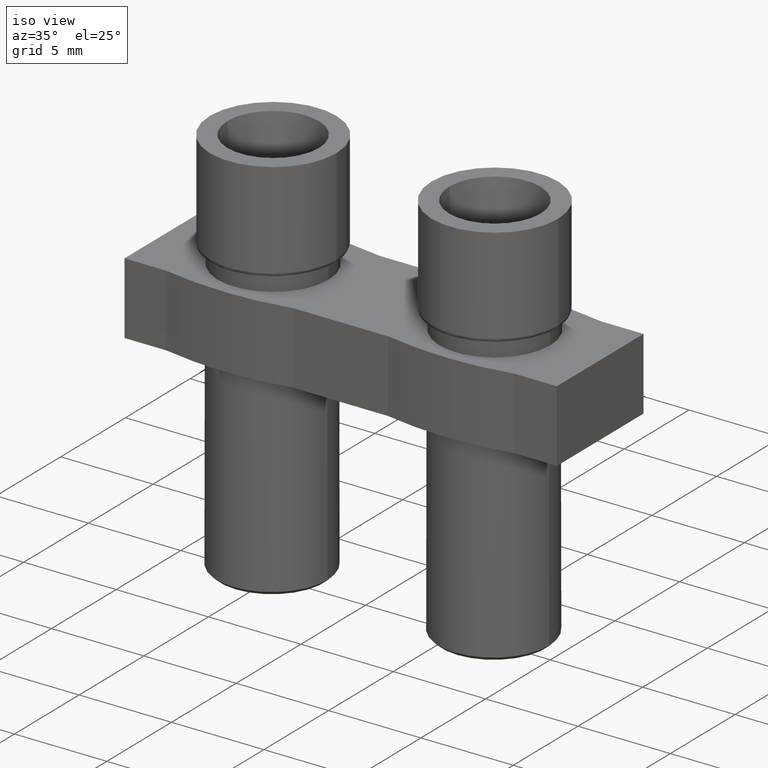
[diagram: clean part render]
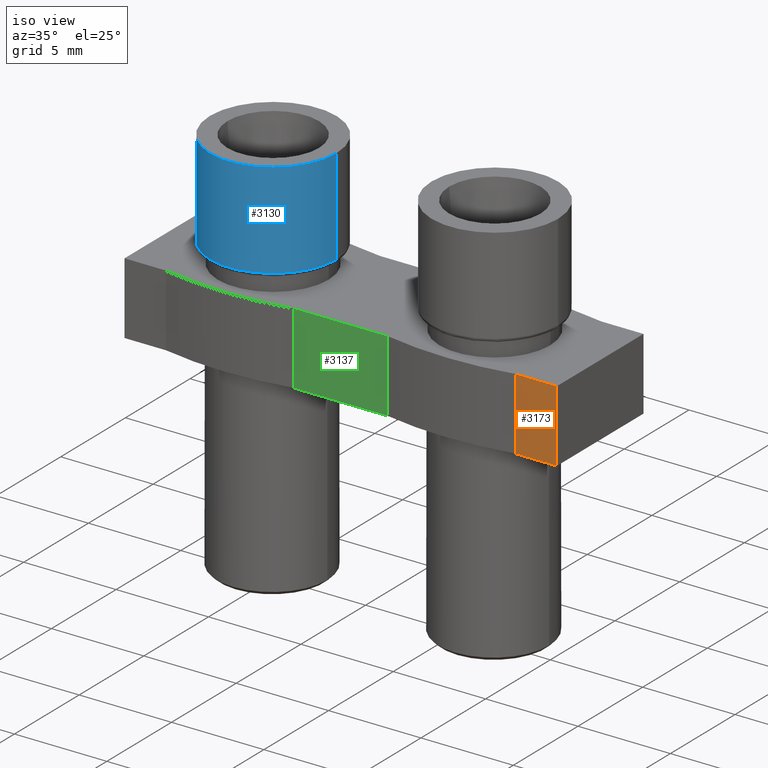
[diagram: same view with three faces highlighted in distinct colors, each labeled with its STEP entity id]
A machine part, iso view with three faces highlighted in distinct colors.
Their STEP definitions:

[orange] entity #3173 — the highlighted planar face has unit normal (-0, 1, 0).
#476 = DIRECTION ( 'NONE',  ( 0.0000000000000000000, 0.0000000000000000000, 1.000000000000000000 ) ) ;
#493 = LINE ( 'NONE', #508, #2606 ) ;
#508 = CARTESIAN_POINT ( 'NONE',  ( 15.44710023062971300, -3.349999999999915300, -9.302499305941093900 ) ) ;
#556 = CARTESIAN_POINT ( 'NONE',  ( 17.69999999999921800, -3.349999999999914400, -15.81000000015502300 ) ) ;
#581 = LINE ( 'NONE', #556, #2609 ) ;
#590 = DIRECTION ( 'NONE',  ( 0.0000000000000000000, 0.0000000000000000000, -1.000000000000000000 ) ) ;
#604 = LINE ( 'NONE', #632, #2608 ) ;
#625 = DIRECTION ( 'NONE',  ( 1.000000000000000000, 1.245679091791856200E-016, -0.0000000000000000000 ) ) ;
#632 = CARTESIAN_POINT ( 'NONE',  ( 28.15000000000000900, -3.349999999999912600, -0.9000000000000014700 ) ) ;
#1237 = FACE_OUTER_BOUND ( 'NONE', #1807, .T. ) ;
#1262 = CARTESIAN_POINT ( 'NONE',  ( 28.15000000000000900, -3.349999999999912600, -0.9000000000000014700 ) ) ;
#1263 = PLANE ( 'NONE',  #2758 ) ;
#1276 = DIRECTION ( 'NONE',  ( -1.000000000000000000, -1.245679091791856200E-016, 0.0000000000000000000 ) ) ;
#1302 = DIRECTION ( 'NONE',  ( -1.245679091791856200E-016, 1.000000000000000000, 0.0000000000000000000 ) ) ;
#1520 = LINE ( 'NONE', #1523, #2588 ) ;
#1523 = CARTESIAN_POINT ( 'NONE',  ( -77.85000000000005100, -3.349999999999912600, -4.800000000000001600 ) ) ;
#1530 = DIRECTION ( 'NONE',  ( -1.000000000000000000, 0.0000000000000000000, -0.0000000000000000000 ) ) ;
#1653 = VERTEX_POINT ( 'NONE', #2417 ) ;
#1692 = VERTEX_POINT ( 'NONE', #2443 ) ;
#1706 = VERTEX_POINT ( 'NONE', #2445 ) ;
#1721 = VERTEX_POINT ( 'NONE', #2463 ) ;
#1807 = EDGE_LOOP ( 'NONE', ( #2190, #2215, #2276, #2207 ) ) ;
#2190 = ORIENTED_EDGE ( 'NONE', *, *, #3045, .F. ) ;
#2207 = ORIENTED_EDGE ( 'NONE', *, *, #2997, .F. ) ;
#2215 = ORIENTED_EDGE ( 'NONE', *, *, #3053, .F. ) ;
#2276 = ORIENTED_EDGE ( 'NONE', *, *, #3010, .F. ) ;
#2417 = CARTESIAN_POINT ( 'NONE',  ( 15.44710023062973500, -3.349999999999912600, -4.800000000000001600 ) ) ;
#2443 = CARTESIAN_POINT ( 'NONE',  ( 15.44710023062971500, -3.349999999999914400, -0.9000000000000014700 ) ) ;
#2445 = CARTESIAN_POINT ( 'NONE',  ( 17.69999999999921800, -3.349999999999912600, -4.800000000000001600 ) ) ;
#2463 = CARTESIAN_POINT ( 'NONE',  ( 17.69999999999921800, -3.349999999999913900, -0.9000000000000014700 ) ) ;
#2588 = VECTOR ( 'NONE', #1530, 1000.000000000000000 ) ;
#2606 = VECTOR ( 'NONE', #476, 1000.000000000000000 ) ;
#2608 = VECTOR ( 'NONE', #625, 1000.000000000000000 ) ;
#2609 = VECTOR ( 'NONE', #590, 1000.000000000000000 ) ;
#2758 = AXIS2_PLACEMENT_3D ( 'NONE', #1262, #1302, #1276 ) ;
#2997 = EDGE_CURVE ( 'NONE', #1706, #1653, #1520, .T. ) ;
#3010 = EDGE_CURVE ( 'NONE', #1653, #1692, #493, .T. ) ;
#3045 = EDGE_CURVE ( 'NONE', #1721, #1706, #581, .T. ) ;
#3053 = EDGE_CURVE ( 'NONE', #1692, #1721, #604, .T. ) ;
#3173 = ADVANCED_FACE ( 'NONE', ( #1237 ), #1263, .F. ) ;

[blue] entity #3130 — the highlighted cylindrical surface (partial cylindrical patch) has radius 3.425 mm, axis along (-0, -0, -1).
#77 = CARTESIAN_POINT ( 'NONE',  ( -3.424999999999998000, 0.0000000000000000000, 5.400000000000000400 ) ) ;
#88 = DIRECTION ( 'NONE',  ( -0.0000000000000000000, -0.0000000000000000000, -1.000000000000000000 ) ) ;
#105 = LINE ( 'NONE', #77, #2873 ) ;
#177 = DIRECTION ( 'NONE',  ( -0.0000000000000000000, -0.0000000000000000000, -1.000000000000000000 ) ) ;
#180 = LINE ( 'NONE', #181, #2874 ) ;
#181 = CARTESIAN_POINT ( 'NONE',  ( 3.424999999999998000, 4.194415287079682000E-016, 5.400000000000000400 ) ) ;
#278 = CARTESIAN_POINT ( 'NONE',  ( 0.0000000000000000000, 0.0000000000000000000, 5.400000000000000400 ) ) ;
#279 = DIRECTION ( 'NONE',  ( -1.000000000000000000, 0.0000000000000000000, 0.0000000000000000000 ) ) ;
#285 = DIRECTION ( 'NONE',  ( -0.0000000000000000000, -0.0000000000000000000, -1.000000000000000000 ) ) ;
#935 = FACE_OUTER_BOUND ( 'NONE', #1785, .T. ) ;
#986 = CARTESIAN_POINT ( 'NONE',  ( 0.0000000000000000000, 0.0000000000000000000, 5.400000000000000400 ) ) ;
#1018 = CYLINDRICAL_SURFACE ( 'NONE', #2689, 3.424999999999998000 ) ;
#1036 = DIRECTION ( 'NONE',  ( -0.0000000000000000000, -0.0000000000000000000, -1.000000000000000000 ) ) ;
#1039 = DIRECTION ( 'NONE',  ( -1.000000000000000000, 0.0000000000000000000, 0.0000000000000000000 ) ) ;
#1360 = CARTESIAN_POINT ( 'NONE',  ( 0.0000000000000000000, 9.629649721936179300E-032, 0.1999999999999996500 ) ) ;
#1373 = DIRECTION ( 'NONE',  ( -0.0000000000000000000, -0.0000000000000000000, -1.000000000000000000 ) ) ;
#1381 = DIRECTION ( 'NONE',  ( 1.000000000000000000, 0.0000000000000000000, 0.0000000000000000000 ) ) ;
#1607 = VERTEX_POINT ( 'NONE', #2330 ) ;
#1618 = VERTEX_POINT ( 'NONE', #2421 ) ;
#1641 = VERTEX_POINT ( 'NONE', #2388 ) ;
#1647 = VERTEX_POINT ( 'NONE', #2376 ) ;
#1785 = EDGE_LOOP ( 'NONE', ( #2061, #2101, #2158, #2098 ) ) ;
#2061 = ORIENTED_EDGE ( 'NONE', *, *, #3281, .F. ) ;
#2098 = ORIENTED_EDGE ( 'NONE', *, *, #3200, .F. ) ;
#2101 = ORIENTED_EDGE ( 'NONE', *, *, #3307, .T. ) ;
#2158 = ORIENTED_EDGE ( 'NONE', *, *, #3253, .T. ) ;
#2330 = CARTESIAN_POINT ( 'NONE',  ( 3.424999999999998000, 4.194415287079682000E-016, 0.1999999999999996500 ) ) ;
#2376 = CARTESIAN_POINT ( 'NONE',  ( -3.424999999999998000, 0.0000000000000000000, 5.400000000000000400 ) ) ;
#2388 = CARTESIAN_POINT ( 'NONE',  ( 3.424999999999998000, 4.194415287079682000E-016, 5.400000000000000400 ) ) ;
#2421 = CARTESIAN_POINT ( 'NONE',  ( -3.424999999999998000, 0.0000000000000000000, 0.1999999999999996500 ) ) ;
#2689 = AXIS2_PLACEMENT_3D ( 'NONE', #986, #1036, #1039 ) ;
#2830 = AXIS2_PLACEMENT_3D ( 'NONE', #1360, #1373, #1381 ) ;
#2841 = CIRCLE ( 'NONE', #2830, 3.424999999999998000 ) ;
#2873 = VECTOR ( 'NONE', #88, 1000.000000000000000 ) ;
#2874 = VECTOR ( 'NONE', #177, 1000.000000000000000 ) ;
#2910 = CIRCLE ( 'NONE', #2957, 3.424999999999998000 ) ;
#2957 = AXIS2_PLACEMENT_3D ( 'NONE', #278, #285, #279 ) ;
#3130 = ADVANCED_FACE ( 'NONE', ( #935 ), #1018, .T. ) ;
#3200 = EDGE_CURVE ( 'NONE', #1607, #1618, #2841, .T. ) ;
#3253 = EDGE_CURVE ( 'NONE', #1647, #1618, #105, .T. ) ;
#3281 = EDGE_CURVE ( 'NONE', #1641, #1607, #180, .T. ) ;
#3307 = EDGE_CURVE ( 'NONE', #1641, #1647, #2910, .T. ) ;

[green] entity #3137 — the highlighted planar face has unit normal (-0, 1, 0).
#527 = DIRECTION ( 'NONE',  ( 1.000000000000000000, 1.245679091791856200E-016, -0.0000000000000000000 ) ) ;
#529 = LINE ( 'NONE', #544, #2647 ) ;
#544 = CARTESIAN_POINT ( 'NONE',  ( 16.15000000000000900, -3.349999999999913900, -0.9000000000000014700 ) ) ;
#682 = DIRECTION ( 'NONE',  ( -1.000000000000000000, 0.0000000000000000000, -0.0000000000000000000 ) ) ;
#694 = CARTESIAN_POINT ( 'NONE',  ( -77.85000000000005100, -3.349999999999916600, -4.800000000000001600 ) ) ;
#704 = LINE ( 'NONE', #694, #2685 ) ;
#990 = PLANE ( 'NONE',  #2708 ) ;
#991 = CARTESIAN_POINT ( 'NONE',  ( 16.15000000000000900, -3.349999999999913900, -0.9000000000000014700 ) ) ;
#996 = FACE_OUTER_BOUND ( 'NONE', #1864, .T. ) ;
#997 = DIRECTION ( 'NONE',  ( -1.245679091791856200E-016, 1.000000000000000000, 0.0000000000000000000 ) ) ;
#1008 = DIRECTION ( 'NONE',  ( -1.000000000000000000, -1.245679091791856200E-016, 0.0000000000000000000 ) ) ;
#1657 = VERTEX_POINT ( 'NONE', #2382 ) ;
#1667 = VERTEX_POINT ( 'NONE', #2407 ) ;
#1710 = VERTEX_POINT ( 'NONE', #2455 ) ;
#1734 = VERTEX_POINT ( 'NONE', #2476 ) ;
#1864 = EDGE_LOOP ( 'NONE', ( #2171, #2146, #2127, #2169 ) ) ;
#2127 = ORIENTED_EDGE ( 'NONE', *, *, #2989, .F. ) ;
#2146 = ORIENTED_EDGE ( 'NONE', *, *, #3081, .F. ) ;
#2169 = ORIENTED_EDGE ( 'NONE', *, *, #3028, .F. ) ;
#2171 = ORIENTED_EDGE ( 'NONE', *, *, #2982, .F. ) ;
#2382 = CARTESIAN_POINT ( 'NONE',  ( 3.447100230629708100, -3.349999999999916600, -4.800000000000001600 ) ) ;
#2407 = CARTESIAN_POINT ( 'NONE',  ( 3.447100230629714700, -3.349999999999915700, -0.9000000000000014700 ) ) ;
#2455 = CARTESIAN_POINT ( 'NONE',  ( 8.552899769370297300, -3.349999999999914800, -0.9000000000000014700 ) ) ;
#2476 = CARTESIAN_POINT ( 'NONE',  ( 8.552899769370302600, -3.349999999999916600, -4.800000000000001600 ) ) ;
#2506 = LINE ( 'NONE', #2508, #2576 ) ;
#2508 = CARTESIAN_POINT ( 'NONE',  ( 8.552899769370297300, -3.349999999999916200, -9.302499305941093900 ) ) ;
#2512 = DIRECTION ( 'NONE',  ( 0.0000000000000000000, 0.0000000000000000000, 1.000000000000000000 ) ) ;
#2514 = CARTESIAN_POINT ( 'NONE',  ( 3.447100230629713400, -3.349999999999917000, -9.302499305941093900 ) ) ;
#2519 = LINE ( 'NONE', #2514, #2555 ) ;
#2530 = DIRECTION ( 'NONE',  ( -0.0000000000000000000, -0.0000000000000000000, -1.000000000000000000 ) ) ;
#2555 = VECTOR ( 'NONE', #2512, 1000.000000000000000 ) ;
#2576 = VECTOR ( 'NONE', #2530, 1000.000000000000000 ) ;
#2647 = VECTOR ( 'NONE', #527, 1000.000000000000000 ) ;
#2685 = VECTOR ( 'NONE', #682, 1000.000000000000000 ) ;
#2708 = AXIS2_PLACEMENT_3D ( 'NONE', #991, #997, #1008 ) ;
#2982 = EDGE_CURVE ( 'NONE', #1657, #1667, #2519, .T. ) ;
#2989 = EDGE_CURVE ( 'NONE', #1710, #1734, #2506, .T. ) ;
#3028 = EDGE_CURVE ( 'NONE', #1667, #1710, #529, .T. ) ;
#3081 = EDGE_CURVE ( 'NONE', #1734, #1657, #704, .T. ) ;
#3137 = ADVANCED_FACE ( 'NONE', ( #996 ), #990, .F. ) ;